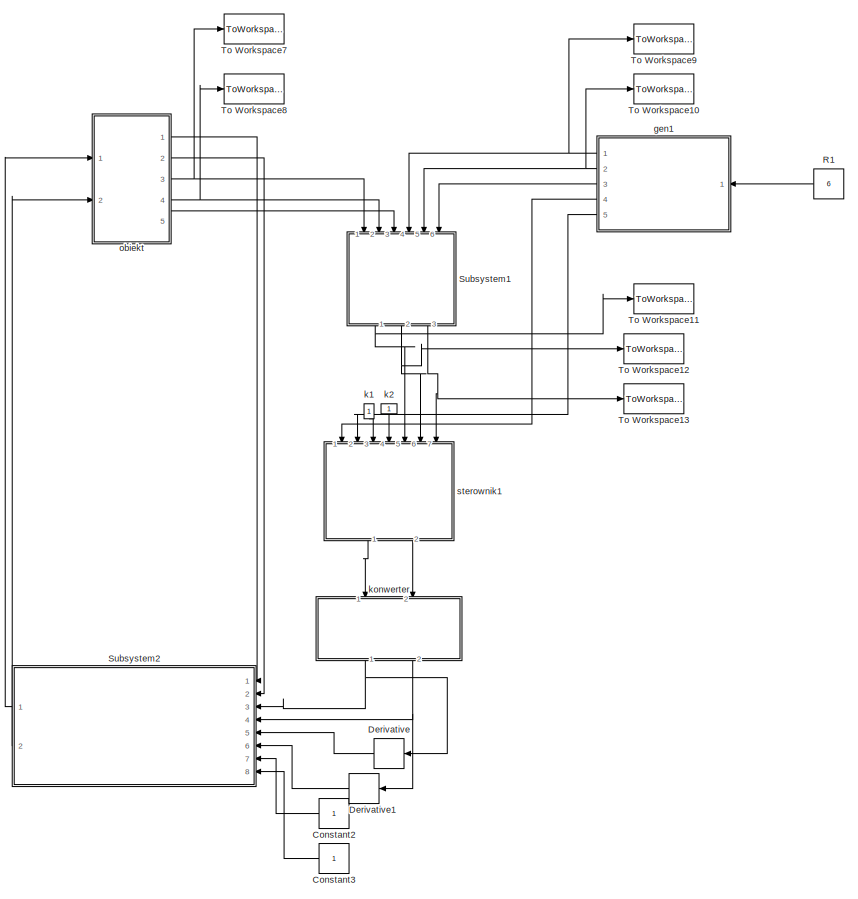
[diagram: root canvas - part 1/2, right side, full height]
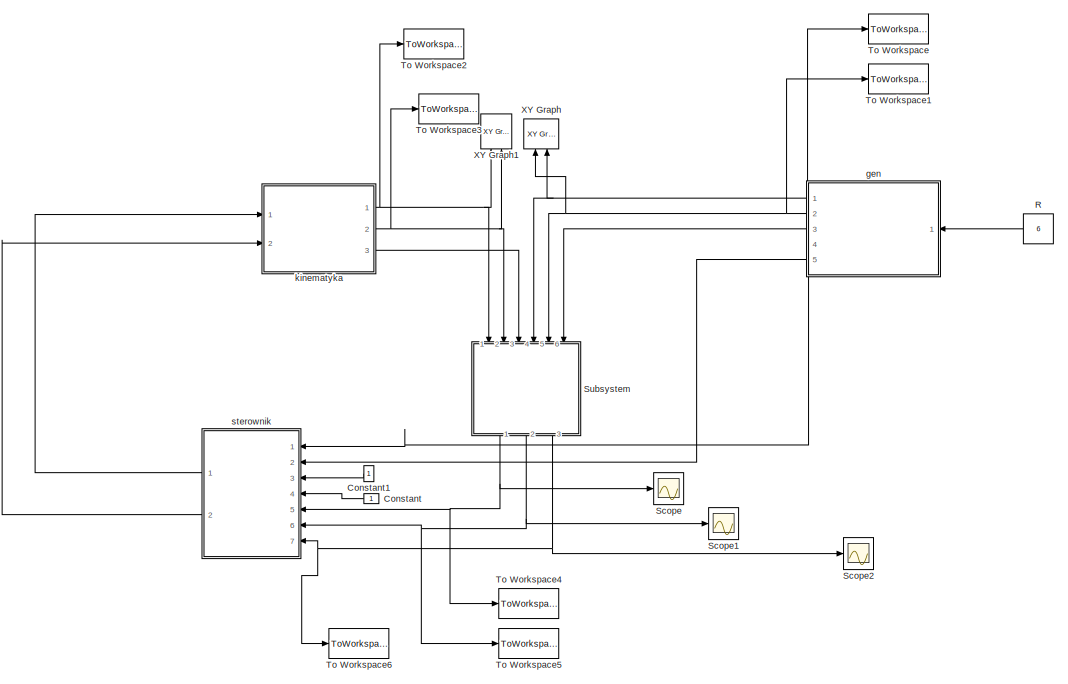
[diagram: root canvas - part 2/2, left side, full height]
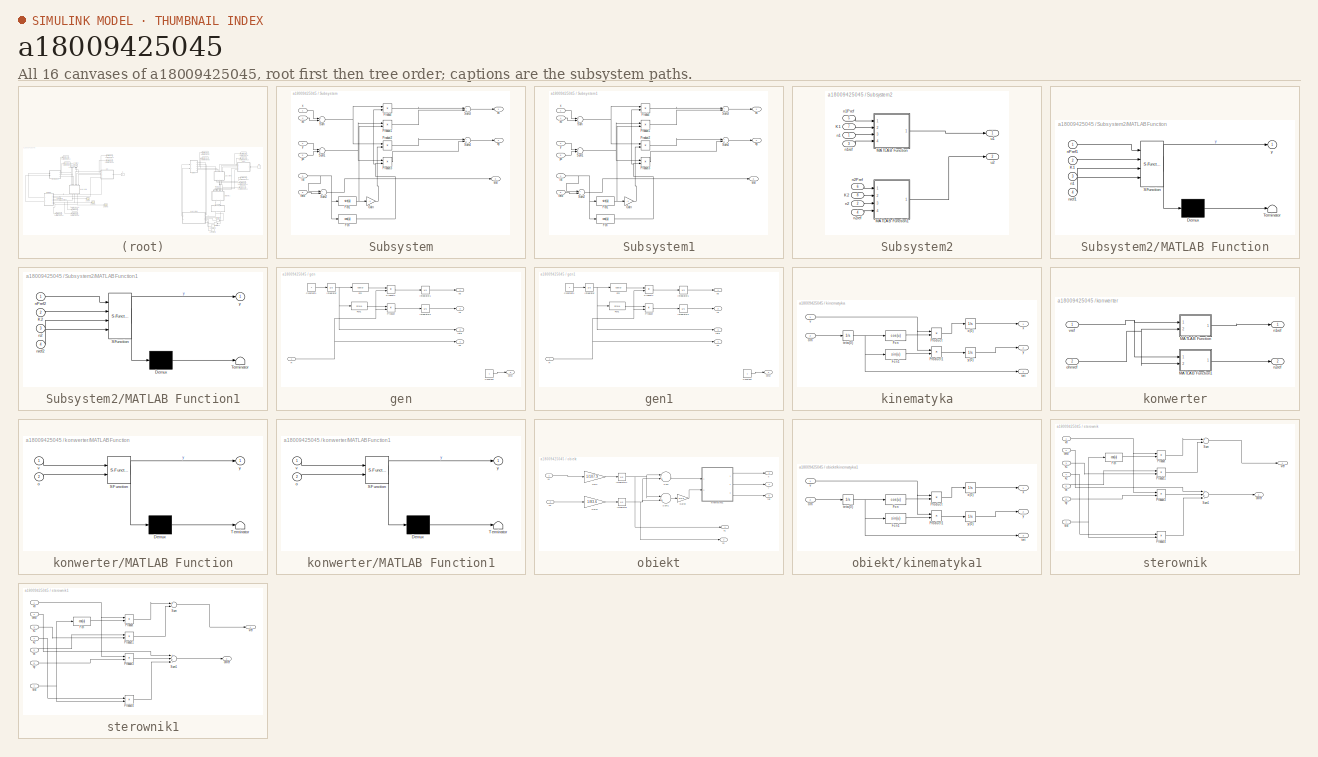
[diagram: thumbnail index - all 16 canvases of the model, root first then tree order]
MODEL slx_a18009425045
KIND model
CONFIG AbsTol = auto
CONFIG FixedStep = auto
CONFIG MaxStep = auto
CONFIG MinStep = auto
CONFIG RelTol = 1e-5
CONFIG SampleTimeConstraint = Unconstrained
CONFIG Solver = ode23
CONFIG SolverMode = Auto
CONFIG SolverName = ode23
CONFIG StartTime = 0.0
CONFIG StopTime = 10.0
BLOCK [Constant] Constant
BLOCK [Constant] Constant1
BLOCK [Constant] Constant2
BLOCK [Constant] Constant3
BLOCK [Derivative] Derivative
BLOCK [Derivative] Derivative1
BLOCK [Constant] R
  Value = 6
BLOCK [Constant] R1
  Value = 6
BLOCK [Scope] Scope
  Ports = [1]
  ScopeSpecificationString = Simulink.scopes.TimeScopeBlockCfg('CurrentConfiguration', extmgr.ConfigurationSet(extmgr.Configuration('Core','General UI',true),extmgr.Configuration('Core','Source UI',true),extmgr.Configuration('Sources','WiredSimulink',true),extmgr.Configuration('Visuals','Time Domain',true,'SerializedDisplays',{struct('MinYLimReal','-7.47551','MaxYLimReal','1.94172','YLabelReal','','MinYLimMag','0.00000','MaxY...<+1331ch>
BLOCK [Scope] Scope1
  Ports = [1]
  ScopeSpecificationString = Simulink.scopes.TimeScopeBlockCfg('CurrentConfiguration', extmgr.ConfigurationSet(extmgr.Configuration('Core','General UI',true),extmgr.Configuration('Core','Source UI',true),extmgr.Configuration('Sources','WiredSimulink',true,'DataLoggingVariableName','ScopeData1'),extmgr.Configuration('Visuals','Time Domain',true,'SerializedDisplays',{struct('MinYLimReal','-1.00000','MaxYLimReal','1.00000','YLab...<+1370ch>
BLOCK [Scope] Scope2
  Ports = [1]
  ScopeSpecificationString = Simulink.scopes.TimeScopeBlockCfg('CurrentConfiguration', extmgr.ConfigurationSet(extmgr.Configuration('Core','General UI',true),extmgr.Configuration('Core','Source UI',true),extmgr.Configuration('Sources','WiredSimulink',true,'DataLoggingVariableName','ScopeData2'),extmgr.Configuration('Visuals','Time Domain',true,'SerializedDisplays',{struct('MinYLimReal','-1.94569','MaxYLimReal','0.21619','YLab...<+1370ch>
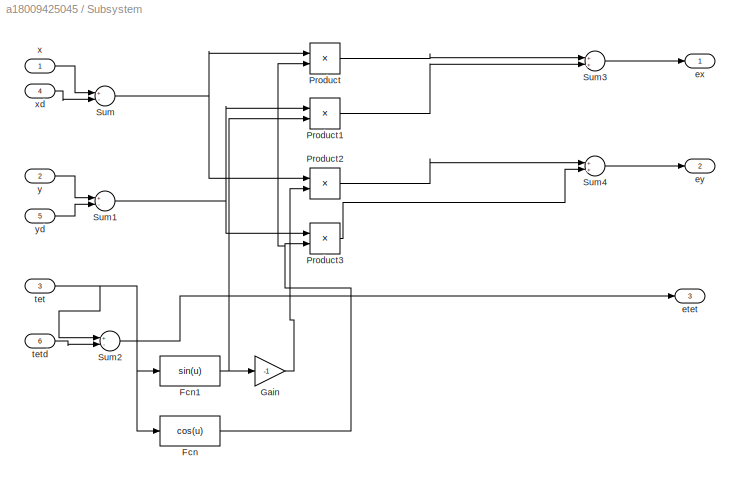
BLOCK [SubSystem] Subsystem
  Ports = [6, 3]
  RequestExecContextInheritance = off
  Variant = off
BLOCK [Fcn] Subsystem/Fcn
  Expr = cos(u)
BLOCK [Fcn] Subsystem/Fcn1
  Expr = sin(u)
BLOCK [Gain] Subsystem/Gain
  Gain = -1
  OutDataTypeStr = Inherit: Inherit via internal rule
  ParamDataTypeStr = Inherit: Inherit via internal rule
  SaturateOnIntegerOverflow = off
BLOCK [Product] Subsystem/Product
  InputSameDT = off
  OutDataTypeStr = Inherit: Inherit via internal rule
  Ports = [2, 1]
  RndMeth = Floor
  SaturateOnIntegerOverflow = off
BLOCK [Product] Subsystem/Product1
  InputSameDT = off
  OutDataTypeStr = Inherit: Inherit via internal rule
  Ports = [2, 1]
  RndMeth = Floor
  SaturateOnIntegerOverflow = off
BLOCK [Product] Subsystem/Product2
  InputSameDT = off
  OutDataTypeStr = Inherit: Inherit via internal rule
  Ports = [2, 1]
  RndMeth = Floor
  SaturateOnIntegerOverflow = off
BLOCK [Product] Subsystem/Product3
  InputSameDT = off
  OutDataTypeStr = Inherit: Inherit via internal rule
  Ports = [2, 1]
  RndMeth = Floor
  SaturateOnIntegerOverflow = off
BLOCK [Sum] Subsystem/Sum
  InputSameDT = off
  Inputs = +-
  OutDataTypeStr = Inherit: Inherit via internal rule
  Ports = [2, 1]
  SaturateOnIntegerOverflow = off
BLOCK [Sum] Subsystem/Sum1
  InputSameDT = off
  Inputs = +-
  OutDataTypeStr = Inherit: Inherit via internal rule
  Ports = [2, 1]
  SaturateOnIntegerOverflow = off
BLOCK [Sum] Subsystem/Sum2
  InputSameDT = off
  Inputs = +-
  OutDataTypeStr = Inherit: Inherit via internal rule
  Ports = [2, 1]
  SaturateOnIntegerOverflow = off
BLOCK [Sum] Subsystem/Sum3
  InputSameDT = off
  OutDataTypeStr = Inherit: Inherit via internal rule
  Ports = [2, 1]
  SaturateOnIntegerOverflow = off
BLOCK [Sum] Subsystem/Sum4
  InputSameDT = off
  OutDataTypeStr = Inherit: Inherit via internal rule
  Ports = [2, 1]
  SaturateOnIntegerOverflow = off
BLOCK [Outport] Subsystem/etet
  IconDisplay = Port number
  Port = 3
BLOCK [Outport] Subsystem/ex
  IconDisplay = Port number
BLOCK [Outport] Subsystem/ey
  IconDisplay = Port number
  Port = 2
BLOCK [Inport] Subsystem/tet
  IconDisplay = Port number
  Port = 3
BLOCK [Inport] Subsystem/tetd
  IconDisplay = Port number
  Port = 6
BLOCK [Inport] Subsystem/x
  IconDisplay = Port number
BLOCK [Inport] Subsystem/xd
  IconDisplay = Port number
  Port = 4
BLOCK [Inport] Subsystem/y
  IconDisplay = Port number
  Port = 2
BLOCK [Inport] Subsystem/yd
  IconDisplay = Port number
  Port = 5
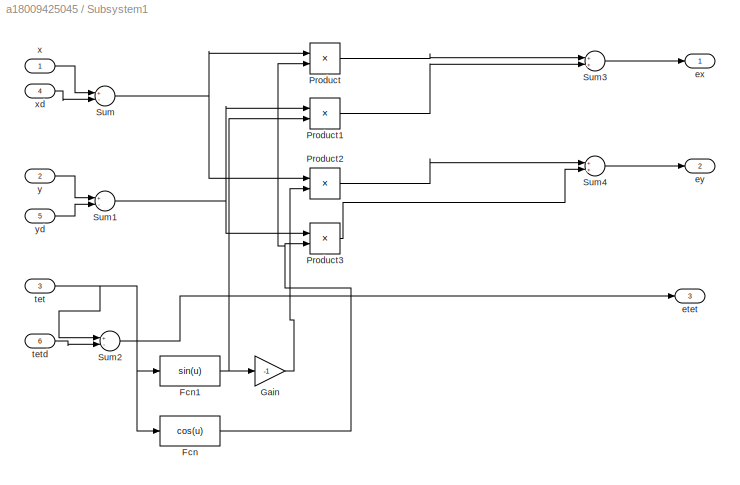
BLOCK [SubSystem] Subsystem1
  Ports = [6, 3]
  RequestExecContextInheritance = off
  Variant = off
BLOCK [Fcn] Subsystem1/Fcn
  Expr = cos(u)
BLOCK [Fcn] Subsystem1/Fcn1
  Expr = sin(u)
BLOCK [Gain] Subsystem1/Gain
  Gain = -1
  OutDataTypeStr = Inherit: Inherit via internal rule
  ParamDataTypeStr = Inherit: Inherit via internal rule
  SaturateOnIntegerOverflow = off
BLOCK [Product] Subsystem1/Product
  InputSameDT = off
  OutDataTypeStr = Inherit: Inherit via internal rule
  Ports = [2, 1]
  RndMeth = Floor
  SaturateOnIntegerOverflow = off
BLOCK [Product] Subsystem1/Product1
  InputSameDT = off
  OutDataTypeStr = Inherit: Inherit via internal rule
  Ports = [2, 1]
  RndMeth = Floor
  SaturateOnIntegerOverflow = off
BLOCK [Product] Subsystem1/Product2
  InputSameDT = off
  OutDataTypeStr = Inherit: Inherit via internal rule
  Ports = [2, 1]
  RndMeth = Floor
  SaturateOnIntegerOverflow = off
BLOCK [Product] Subsystem1/Product3
  InputSameDT = off
  OutDataTypeStr = Inherit: Inherit via internal rule
  Ports = [2, 1]
  RndMeth = Floor
  SaturateOnIntegerOverflow = off
BLOCK [Sum] Subsystem1/Sum
  InputSameDT = off
  Inputs = +-
  OutDataTypeStr = Inherit: Inherit via internal rule
  Ports = [2, 1]
  SaturateOnIntegerOverflow = off
BLOCK [Sum] Subsystem1/Sum1
  InputSameDT = off
  Inputs = +-
  OutDataTypeStr = Inherit: Inherit via internal rule
  Ports = [2, 1]
  SaturateOnIntegerOverflow = off
BLOCK [Sum] Subsystem1/Sum2
  InputSameDT = off
  Inputs = +-
  OutDataTypeStr = Inherit: Inherit via internal rule
  Ports = [2, 1]
  SaturateOnIntegerOverflow = off
BLOCK [Sum] Subsystem1/Sum3
  InputSameDT = off
  OutDataTypeStr = Inherit: Inherit via internal rule
  Ports = [2, 1]
  SaturateOnIntegerOverflow = off
BLOCK [Sum] Subsystem1/Sum4
  InputSameDT = off
  OutDataTypeStr = Inherit: Inherit via internal rule
  Ports = [2, 1]
  SaturateOnIntegerOverflow = off
BLOCK [Outport] Subsystem1/etet
  IconDisplay = Port number
  Port = 3
BLOCK [Outport] Subsystem1/ex
  IconDisplay = Port number
BLOCK [Outport] Subsystem1/ey
  IconDisplay = Port number
  Port = 2
BLOCK [Inport] Subsystem1/tet
  IconDisplay = Port number
  Port = 3
BLOCK [Inport] Subsystem1/tetd
  IconDisplay = Port number
  Port = 6
BLOCK [Inport] Subsystem1/x
  IconDisplay = Port number
BLOCK [Inport] Subsystem1/xd
  IconDisplay = Port number
  Port = 4
BLOCK [Inport] Subsystem1/y
  IconDisplay = Port number
  Port = 2
BLOCK [Inport] Subsystem1/yd
  IconDisplay = Port number
  Port = 5
BLOCK [SubSystem] Subsystem2
  Ports = [8, 2]
  RequestExecContextInheritance = off
  Variant = off
BLOCK [Inport] Subsystem2/K1
  IconDisplay = Port number
  Port = 7
BLOCK [Inport] Subsystem2/K2
  IconDisplay = Port number
  Port = 8
BLOCK [SubSystem] Subsystem2/MATLAB Function
  ErrorFcn = Stateflow.Translate.translate
  PermitHierarchicalResolution = ExplicitOnly
  Ports = [4, 1]
  RequestExecContextInheritance = off
  SFBlockType = MATLAB Function
  TreatAsAtomicUnit = on
  Variant = off
BLOCK [Demux] Subsystem2/MATLAB Function/ Demux 
  Outputs = 1
  Ports = [1, 1]
BLOCK [S-Function] Subsystem2/MATLAB Function/ SFunction 
  EnableBusSupport = on
  FunctionName = sf_sfun
  PortCounts = [4 2]
  Ports = [4, 2]
  SFunctionDeploymentMode = off
  Tag = Stateflow S-Function laby2 3
BLOCK [Terminator] Subsystem2/MATLAB Function/ Terminator 
BLOCK [Inport] Subsystem2/MATLAB Function/K1
  IconDisplay = Port number
  Port = 2
BLOCK [Inport] Subsystem2/MATLAB Function/n1
  IconDisplay = Port number
  Port = 3
BLOCK [Inport] Subsystem2/MATLAB Function/nPref1
  IconDisplay = Port number
BLOCK [Inport] Subsystem2/MATLAB Function/nref1
  IconDisplay = Port number
  Port = 4
BLOCK [Outport] Subsystem2/MATLAB Function/y
  IconDisplay = Port number
BLOCK [SubSystem] Subsystem2/MATLAB Function1
  ErrorFcn = Stateflow.Translate.translate
  PermitHierarchicalResolution = ExplicitOnly
  Ports = [4, 1]
  RequestExecContextInheritance = off
  SFBlockType = MATLAB Function
  TreatAsAtomicUnit = on
  Variant = off
BLOCK [Demux] Subsystem2/MATLAB Function1/ Demux 
  Outputs = 1
  Ports = [1, 1]
BLOCK [S-Function] Subsystem2/MATLAB Function1/ SFunction 
  EnableBusSupport = on
  FunctionName = sf_sfun
  PortCounts = [4 2]
  Ports = [4, 2]
  SFunctionDeploymentMode = off
  Tag = Stateflow S-Function laby2 4
BLOCK [Terminator] Subsystem2/MATLAB Function1/ Terminator 
BLOCK [Inport] Subsystem2/MATLAB Function1/K2
  IconDisplay = Port number
  Port = 2
BLOCK [Inport] Subsystem2/MATLAB Function1/n2
  IconDisplay = Port number
  Port = 3
BLOCK [Inport] Subsystem2/MATLAB Function1/nPref2
  IconDisplay = Port number
BLOCK [Inport] Subsystem2/MATLAB Function1/nref2
  IconDisplay = Port number
  Port = 4
BLOCK [Outport] Subsystem2/MATLAB Function1/y
  IconDisplay = Port number
BLOCK [Inport] Subsystem2/n1
  IconDisplay = Port number
BLOCK [Inport] Subsystem2/n1Pref
  IconDisplay = Port number
  Port = 5
BLOCK [Inport] Subsystem2/n1ref
  IconDisplay = Port number
  Port = 3
BLOCK [Inport] Subsystem2/n2
  IconDisplay = Port number
  Port = 2
BLOCK [Inport] Subsystem2/n2Pref
  IconDisplay = Port number
  Port = 6
BLOCK [Inport] Subsystem2/n2ref
  IconDisplay = Port number
  Port = 4
BLOCK [Outport] Subsystem2/u1
  IconDisplay = Port number
BLOCK [Outport] Subsystem2/u2
  IconDisplay = Port number
  Port = 2
BLOCK [ToWorkspace] To Workspace
  FixptAsFi = on
  MaxDataPoints = inf
  Ports = [1]
  SampleTime = -1
  Save2DSignal = 3-D array (concatenate along third dimension)
  VariableName = xd
BLOCK [ToWorkspace] To Workspace1
  FixptAsFi = on
  MaxDataPoints = inf
  Ports = [1]
  SampleTime = -1
  Save2DSignal = 3-D array (concatenate along third dimension)
  VariableName = yd
BLOCK [ToWorkspace] To Workspace10
  FixptAsFi = on
  MaxDataPoints = inf
  Ports = [1]
  SampleTime = -1
  Save2DSignal = 3-D array (concatenate along third dimension)
  VariableName = y2d
BLOCK [ToWorkspace] To Workspace11
  FixptAsFi = on
  MaxDataPoints = inf
  Ports = [1]
  SampleTime = -1
  Save2DSignal = 3-D array (concatenate along third dimension)
  VariableName = ex2
BLOCK [ToWorkspace] To Workspace12
  FixptAsFi = on
  MaxDataPoints = inf
  Ports = [1]
  SampleTime = -1
  Save2DSignal = 3-D array (concatenate along third dimension)
  VariableName = ey2
BLOCK [ToWorkspace] To Workspace13
  FixptAsFi = on
  MaxDataPoints = inf
  Ports = [1]
  SampleTime = -1
  Save2DSignal = 3-D array (concatenate along third dimension)
  VariableName = etet2
BLOCK [ToWorkspace] To Workspace2
  FixptAsFi = on
  MaxDataPoints = inf
  Ports = [1]
  SampleTime = -1
  Save2DSignal = 3-D array (concatenate along third dimension)
  VariableName = x
BLOCK [ToWorkspace] To Workspace3
  FixptAsFi = on
  MaxDataPoints = inf
  Ports = [1]
  SampleTime = -1
  Save2DSignal = 3-D array (concatenate along third dimension)
  VariableName = y
BLOCK [ToWorkspace] To Workspace4
  FixptAsFi = on
  MaxDataPoints = inf
  Ports = [1]
  SampleTime = -1
  Save2DSignal = 3-D array (concatenate along third dimension)
  VariableName = ex
BLOCK [ToWorkspace] To Workspace5
  FixptAsFi = on
  MaxDataPoints = inf
  Ports = [1]
  SampleTime = -1
  Save2DSignal = 3-D array (concatenate along third dimension)
  VariableName = ey
BLOCK [ToWorkspace] To Workspace6
  FixptAsFi = on
  MaxDataPoints = inf
  Ports = [1]
  SampleTime = -1
  Save2DSignal = 3-D array (concatenate along third dimension)
  VariableName = etet
BLOCK [ToWorkspace] To Workspace7
  FixptAsFi = on
  MaxDataPoints = inf
  Ports = [1]
  SampleTime = -1
  Save2DSignal = 3-D array (concatenate along third dimension)
  VariableName = x2
BLOCK [ToWorkspace] To Workspace8
  FixptAsFi = on
  MaxDataPoints = inf
  Ports = [1]
  SampleTime = -1
  Save2DSignal = 3-D array (concatenate along third dimension)
  VariableName = y2
BLOCK [ToWorkspace] To Workspace9
  FixptAsFi = on
  MaxDataPoints = inf
  Ports = [1]
  SampleTime = -1
  Save2DSignal = 3-D array (concatenate along third dimension)
  VariableName = x2d
BLOCK [Reference] XY Graph  REF=simulink/Sinks/XY Graph
  Ports = [2]
  SourceBlock = simulink/Sinks/XY Graph
  SourceType = XY scope.
BLOCK [Reference] XY Graph1  REF=simulink/Sinks/XY Graph
  Ports = [2]
  SourceBlock = simulink/Sinks/XY Graph
  SourceType = XY scope.
BLOCK [SubSystem] gen
  Ports = [1, 5]
  RequestExecContextInheritance = off
  Variant = off
BLOCK [Constant] gen/Constant
BLOCK [Constant] gen/Constant1
BLOCK [Fcn] gen/Fcn
  Expr = cos(u)
BLOCK [Fcn] gen/Fcn1
  Expr = sin(u)
BLOCK [Integrator] gen/Integrator
  Ports = [1, 1]
BLOCK [Integrator] gen/Integrator1
  Ports = [1, 1]
BLOCK [Integrator] gen/Integrator2
  InitialCondition = -6
  Ports = [1, 1]
BLOCK [Product] gen/Product
  InputSameDT = off
  OutDataTypeStr = Inherit: Inherit via internal rule
  Ports = [2, 1]
  RndMeth = Floor
  SaturateOnIntegerOverflow = off
BLOCK [Product] gen/Product1
  InputSameDT = off
  OutDataTypeStr = Inherit: Inherit via internal rule
  Ports = [2, 1]
  RndMeth = Floor
  SaturateOnIntegerOverflow = off
BLOCK [Inport] gen/R
  IconDisplay = Port number
BLOCK [Outport] gen/omd
  IconDisplay = Port number
  Port = 5
BLOCK [Outport] gen/tetd
  IconDisplay = Port number
  Port = 3
BLOCK [Outport] gen/vd
  IconDisplay = Port number
  Port = 4
BLOCK [Outport] gen/xd
  IconDisplay = Port number
BLOCK [Outport] gen/yd
  IconDisplay = Port number
  Port = 2
BLOCK [SubSystem] gen1
  Ports = [1, 5]
  RequestExecContextInheritance = off
  Variant = off
BLOCK [Constant] gen1/Constant
BLOCK [Constant] gen1/Constant1
BLOCK [Fcn] gen1/Fcn
  Expr = cos(u)
BLOCK [Fcn] gen1/Fcn1
  Expr = sin(u)
BLOCK [Integrator] gen1/Integrator
  Ports = [1, 1]
BLOCK [Integrator] gen1/Integrator1
  Ports = [1, 1]
BLOCK [Integrator] gen1/Integrator2
  InitialCondition = -6
  Ports = [1, 1]
BLOCK [Product] gen1/Product
  InputSameDT = off
  OutDataTypeStr = Inherit: Inherit via internal rule
  Ports = [2, 1]
  RndMeth = Floor
  SaturateOnIntegerOverflow = off
BLOCK [Product] gen1/Product1
  InputSameDT = off
  OutDataTypeStr = Inherit: Inherit via internal rule
  Ports = [2, 1]
  RndMeth = Floor
  SaturateOnIntegerOverflow = off
BLOCK [Inport] gen1/R
  IconDisplay = Port number
BLOCK [Outport] gen1/omd
  IconDisplay = Port number
  Port = 5
BLOCK [Outport] gen1/tetd
  IconDisplay = Port number
  Port = 3
BLOCK [Outport] gen1/vd
  IconDisplay = Port number
  Port = 4
BLOCK [Outport] gen1/xd
  IconDisplay = Port number
BLOCK [Outport] gen1/yd
  IconDisplay = Port number
  Port = 2
BLOCK [Constant] k1
BLOCK [Constant] k2
BLOCK [SubSystem] kinematyka
  Ports = [2, 3]
  RequestExecContextInheritance = off
  Variant = off
BLOCK [Fcn] kinematyka/Fcn
  Expr = cos(u)
BLOCK [Fcn] kinematyka/Fcn1
  Expr = sin(u)
BLOCK [Product] kinematyka/Product
  InputSameDT = off
  OutDataTypeStr = Inherit: Inherit via internal rule
  Ports = [2, 1]
  RndMeth = Floor
  SaturateOnIntegerOverflow = off
BLOCK [Product] kinematyka/Product1
  InputSameDT = off
  OutDataTypeStr = Inherit: Inherit via internal rule
  Ports = [2, 1]
  RndMeth = Floor
  SaturateOnIntegerOverflow = off
BLOCK [Inport] kinematyka/om
  IconDisplay = Port number
  Port = 2
BLOCK [Outport] kinematyka/tet
  IconDisplay = Port number
  Port = 3
BLOCK [Integrator] kinematyka/teta(0)
  Ports = [1, 1]
BLOCK [Inport] kinematyka/v
  IconDisplay = Port number
BLOCK [Outport] kinematyka/x
  IconDisplay = Port number
BLOCK [Integrator] kinematyka/x(0)
  InitialCondition = 1
  Ports = [1, 1]
BLOCK [Outport] kinematyka/y
  IconDisplay = Port number
  Port = 2
BLOCK [Integrator] kinematyka/y(0)
  InitialCondition = 1
  Ports = [1, 1]
BLOCK [SubSystem] konwerter
  Ports = [2, 2]
  RequestExecContextInheritance = off
  Variant = off
BLOCK [SubSystem] konwerter/MATLAB Function
  ErrorFcn = Stateflow.Translate.translate
  PermitHierarchicalResolution = ExplicitOnly
  Ports = [2, 1]
  RequestExecContextInheritance = off
  SFBlockType = MATLAB Function
  TreatAsAtomicUnit = on
  Variant = off
BLOCK [Demux] konwerter/MATLAB Function/ Demux 
  Outputs = 1
  Ports = [1, 1]
BLOCK [S-Function] konwerter/MATLAB Function/ SFunction 
  EnableBusSupport = on
  FunctionName = sf_sfun
  PortCounts = [2 2]
  Ports = [2, 2]
  SFunctionDeploymentMode = off
  Tag = Stateflow S-Function laby2 2
BLOCK [Terminator] konwerter/MATLAB Function/ Terminator 
BLOCK [Inport] konwerter/MATLAB Function/o
  IconDisplay = Port number
  Port = 2
BLOCK [Inport] konwerter/MATLAB Function/v
  IconDisplay = Port number
BLOCK [Outport] konwerter/MATLAB Function/y
  IconDisplay = Port number
BLOCK [SubSystem] konwerter/MATLAB Function1
  ErrorFcn = Stateflow.Translate.translate
  PermitHierarchicalResolution = ExplicitOnly
  Ports = [2, 1]
  RequestExecContextInheritance = off
  SFBlockType = MATLAB Function
  TreatAsAtomicUnit = on
  Variant = off
BLOCK [Demux] konwerter/MATLAB Function1/ Demux 
  Outputs = 1
  Ports = [1, 1]
BLOCK [S-Function] konwerter/MATLAB Function1/ SFunction 
  EnableBusSupport = on
  FunctionName = sf_sfun
  PortCounts = [2 2]
  Ports = [2, 2]
  SFunctionDeploymentMode = off
  Tag = Stateflow S-Function laby2 1
BLOCK [Terminator] konwerter/MATLAB Function1/ Terminator 
BLOCK [Inport] konwerter/MATLAB Function1/o
  IconDisplay = Port number
  Port = 2
BLOCK [Inport] konwerter/MATLAB Function1/v
  IconDisplay = Port number
BLOCK [Outport] konwerter/MATLAB Function1/y
  IconDisplay = Port number
BLOCK [Outport] konwerter/n1ref
  IconDisplay = Port number
BLOCK [Outport] konwerter/n2ref
  IconDisplay = Port number
  Port = 2
BLOCK [Inport] konwerter/ohmref
  IconDisplay = Port number
  Port = 2
BLOCK [Inport] konwerter/vref
  IconDisplay = Port number
BLOCK [SubSystem] obiekt
  Ports = [2, 5]
  RequestExecContextInheritance = off
  Variant = off
BLOCK [Gain] obiekt/Gain
  Gain = 1/107.9
  OutDataTypeStr = Inherit: Inherit via internal rule
  ParamDataTypeStr = Inherit: Inherit via internal rule
  SaturateOnIntegerOverflow = off
BLOCK [Gain] obiekt/Gain1
  Gain = 1/83.6
  OutDataTypeStr = Inherit: Inherit via internal rule
  ParamDataTypeStr = Inherit: Inherit via internal rule
  SaturateOnIntegerOverflow = off
BLOCK [Gain] obiekt/Gain2
  Gain = 1/0.3
  OutDataTypeStr = Inherit: Inherit via internal rule
  ParamDataTypeStr = Inherit: Inherit via internal rule
  SaturateOnIntegerOverflow = off
BLOCK [Integrator] obiekt/Integrator
  Ports = [1, 1]
BLOCK [Integrator] obiekt/Integrator1
  Ports = [1, 1]
BLOCK [Sum] obiekt/Sum
  InputSameDT = off
  Inputs = |++
  OutDataTypeStr = Inherit: Inherit via internal rule
  Ports = [2, 1]
  SaturateOnIntegerOverflow = off
BLOCK [Sum] obiekt/Sum1
  InputSameDT = off
  Inputs = |+-
  OutDataTypeStr = Inherit: Inherit via internal rule
  Ports = [2, 1]
  SaturateOnIntegerOverflow = off
BLOCK [SubSystem] obiekt/kinematyka1
  Ports = [2, 3]
  RequestExecContextInheritance = off
  Variant = off
BLOCK [Fcn] obiekt/kinematyka1/Fcn
  Expr = cos(u)
BLOCK [Fcn] obiekt/kinematyka1/Fcn1
  Expr = sin(u)
BLOCK [Product] obiekt/kinematyka1/Product
  InputSameDT = off
  OutDataTypeStr = Inherit: Inherit via internal rule
  Ports = [2, 1]
  RndMeth = Floor
  SaturateOnIntegerOverflow = off
BLOCK [Product] obiekt/kinematyka1/Product1
  InputSameDT = off
  OutDataTypeStr = Inherit: Inherit via internal rule
  Ports = [2, 1]
  RndMeth = Floor
  SaturateOnIntegerOverflow = off
BLOCK [Inport] obiekt/kinematyka1/om
  IconDisplay = Port number
  Port = 2
BLOCK [Outport] obiekt/kinematyka1/tet
  IconDisplay = Port number
  Port = 3
BLOCK [Integrator] obiekt/kinematyka1/teta(0)
  Ports = [1, 1]
BLOCK [Inport] obiekt/kinematyka1/v
  IconDisplay = Port number
BLOCK [Outport] obiekt/kinematyka1/x
  IconDisplay = Port number
BLOCK [Integrator] obiekt/kinematyka1/x(0)
  InitialCondition = 1
  Ports = [1, 1]
BLOCK [Outport] obiekt/kinematyka1/y
  IconDisplay = Port number
  Port = 2
BLOCK [Integrator] obiekt/kinematyka1/y(0)
  InitialCondition = 1
  Ports = [1, 1]
BLOCK [Outport] obiekt/n1
  IconDisplay = Port number
BLOCK [Outport] obiekt/n2
  IconDisplay = Port number
  Port = 2
BLOCK [Outport] obiekt/tet
  IconDisplay = Port number
  Port = 5
BLOCK [Inport] obiekt/u1
  IconDisplay = Port number
BLOCK [Inport] obiekt/u2
  IconDisplay = Port number
  Port = 2
BLOCK [Outport] obiekt/x
  IconDisplay = Port number
  Port = 3
BLOCK [Outport] obiekt/y
  IconDisplay = Port number
  Port = 4
BLOCK [SubSystem] sterownik
  Ports = [7, 2]
  RequestExecContextInheritance = off
  Variant = off
BLOCK [Fcn] sterownik/Fcn
  Expr = cos(u)
BLOCK [Product] sterownik/Product
  InputSameDT = off
  OutDataTypeStr = Inherit: Inherit via internal rule
  Ports = [2, 1]
  RndMeth = Floor
  SaturateOnIntegerOverflow = off
BLOCK [Product] sterownik/Product1
  InputSameDT = off
  OutDataTypeStr = Inherit: Inherit via internal rule
  Ports = [2, 1]
  RndMeth = Floor
  SaturateOnIntegerOverflow = off
BLOCK [Product] sterownik/Product3
  InputSameDT = off
  OutDataTypeStr = Inherit: Inherit via internal rule
  Ports = [2, 1]
  RndMeth = Floor
  SaturateOnIntegerOverflow = off
BLOCK [Product] sterownik/Product4
  InputSameDT = off
  OutDataTypeStr = Inherit: Inherit via internal rule
  Ports = [2, 1]
  RndMeth = Floor
  SaturateOnIntegerOverflow = off
BLOCK [Sum] sterownik/Sum
  InputSameDT = off
  Inputs = +-
  OutDataTypeStr = Inherit: Inherit via internal rule
  Ports = [2, 1]
  SaturateOnIntegerOverflow = off
BLOCK [Sum] sterownik/Sum1
  InputSameDT = off
  Inputs = +--
  OutDataTypeStr = Inherit: Inherit via internal rule
  Ports = [3, 1]
  SaturateOnIntegerOverflow = off
BLOCK [Inport] sterownik/etet
  IconDisplay = Port number
  Port = 7
BLOCK [Inport] sterownik/ex
  IconDisplay = Port number
  Port = 5
BLOCK [Inport] sterownik/ey
  IconDisplay = Port number
  Port = 6
BLOCK [Inport] sterownik/k1
  IconDisplay = Port number
  Port = 3
BLOCK [Inport] sterownik/k2
  IconDisplay = Port number
  Port = 4
BLOCK [Inport] sterownik/omd
  IconDisplay = Port number
  Port = 2
BLOCK [Outport] sterownik/omref
  IconDisplay = Port number
  Port = 2
BLOCK [Inport] sterownik/vd
  IconDisplay = Port number
BLOCK [Outport] sterownik/vref
  IconDisplay = Port number
BLOCK [SubSystem] sterownik1
  Ports = [7, 2]
  RequestExecContextInheritance = off
  Variant = off
BLOCK [Fcn] sterownik1/Fcn
  Expr = cos(u)
BLOCK [Product] sterownik1/Product
  InputSameDT = off
  OutDataTypeStr = Inherit: Inherit via internal rule
  Ports = [2, 1]
  RndMeth = Floor
  SaturateOnIntegerOverflow = off
BLOCK [Product] sterownik1/Product1
  InputSameDT = off
  OutDataTypeStr = Inherit: Inherit via internal rule
  Ports = [2, 1]
  RndMeth = Floor
  SaturateOnIntegerOverflow = off
BLOCK [Product] sterownik1/Product3
  InputSameDT = off
  OutDataTypeStr = Inherit: Inherit via internal rule
  Ports = [2, 1]
  RndMeth = Floor
  SaturateOnIntegerOverflow = off
BLOCK [Product] sterownik1/Product4
  InputSameDT = off
  OutDataTypeStr = Inherit: Inherit via internal rule
  Ports = [2, 1]
  RndMeth = Floor
  SaturateOnIntegerOverflow = off
BLOCK [Sum] sterownik1/Sum
  InputSameDT = off
  Inputs = +-
  OutDataTypeStr = Inherit: Inherit via internal rule
  Ports = [2, 1]
  SaturateOnIntegerOverflow = off
BLOCK [Sum] sterownik1/Sum1
  InputSameDT = off
  Inputs = +--
  OutDataTypeStr = Inherit: Inherit via internal rule
  Ports = [3, 1]
  SaturateOnIntegerOverflow = off
BLOCK [Inport] sterownik1/etet
  IconDisplay = Port number
  Port = 7
BLOCK [Inport] sterownik1/ex
  IconDisplay = Port number
  Port = 5
BLOCK [Inport] sterownik1/ey
  IconDisplay = Port number
  Port = 6
BLOCK [Inport] sterownik1/k1
  IconDisplay = Port number
  Port = 3
BLOCK [Inport] sterownik1/k2
  IconDisplay = Port number
  Port = 4
BLOCK [Inport] sterownik1/omd
  IconDisplay = Port number
  Port = 2
BLOCK [Outport] sterownik1/omref
  IconDisplay = Port number
  Port = 2
BLOCK [Inport] sterownik1/vd
  IconDisplay = Port number
BLOCK [Outport] sterownik1/vref
  IconDisplay = Port number
LINE Constant1:1 -> sterownik:3
LINE Constant2:1 -> Subsystem2:7
LINE Constant3:1 -> Subsystem2:8
LINE Constant:1 -> sterownik:4
LINE Derivative1:1 -> Subsystem2:6
LINE Derivative:1 -> Subsystem2:5
LINE R1:1 -> gen1:1
LINE R:1 -> gen:1
NET Subsystem/Fcn1:1 -> Subsystem/Gain:1, Subsystem/Product1:2
NET Subsystem/Fcn:1 -> Subsystem/Product3:2, Subsystem/Product:2
LINE Subsystem/Gain:1 -> Subsystem/Product2:2
LINE Subsystem/Product1:1 -> Subsystem/Sum3:2
LINE Subsystem/Product2:1 -> Subsystem/Sum4:1
LINE Subsystem/Product3:1 -> Subsystem/Sum4:2
LINE Subsystem/Product:1 -> Subsystem/Sum3:1
NET Subsystem/Sum1:1 -> Subsystem/Product1:1, Subsystem/Product3:1
LINE Subsystem/Sum2:1 -> Subsystem/etet:1
LINE Subsystem/Sum3:1 -> Subsystem/ex:1
LINE Subsystem/Sum4:1 -> Subsystem/ey:1
NET Subsystem/Sum:1 -> Subsystem/Product2:1, Subsystem/Product:1
NET Subsystem/tet:1 -> Subsystem/Fcn1:1, Subsystem/Fcn:1, Subsystem/Sum2:1
LINE Subsystem/tetd:1 -> Subsystem/Sum2:2
LINE Subsystem/x:1 -> Subsystem/Sum:1
LINE Subsystem/xd:1 -> Subsystem/Sum:2
LINE Subsystem/y:1 -> Subsystem/Sum1:1
LINE Subsystem/yd:1 -> Subsystem/Sum1:2
NET Subsystem1/Fcn1:1 -> Subsystem1/Gain:1, Subsystem1/Product1:2
NET Subsystem1/Fcn:1 -> Subsystem1/Product3:2, Subsystem1/Product:2
LINE Subsystem1/Gain:1 -> Subsystem1/Product2:2
LINE Subsystem1/Product1:1 -> Subsystem1/Sum3:2
LINE Subsystem1/Product2:1 -> Subsystem1/Sum4:1
LINE Subsystem1/Product3:1 -> Subsystem1/Sum4:2
LINE Subsystem1/Product:1 -> Subsystem1/Sum3:1
NET Subsystem1/Sum1:1 -> Subsystem1/Product1:1, Subsystem1/Product3:1
LINE Subsystem1/Sum2:1 -> Subsystem1/etet:1
LINE Subsystem1/Sum3:1 -> Subsystem1/ex:1
LINE Subsystem1/Sum4:1 -> Subsystem1/ey:1
NET Subsystem1/Sum:1 -> Subsystem1/Product2:1, Subsystem1/Product:1
NET Subsystem1/tet:1 -> Subsystem1/Fcn1:1, Subsystem1/Fcn:1, Subsystem1/Sum2:1
LINE Subsystem1/tetd:1 -> Subsystem1/Sum2:2
LINE Subsystem1/x:1 -> Subsystem1/Sum:1
LINE Subsystem1/xd:1 -> Subsystem1/Sum:2
LINE Subsystem1/y:1 -> Subsystem1/Sum1:1
LINE Subsystem1/yd:1 -> Subsystem1/Sum1:2
NET Subsystem1:1 -> To Workspace11:1, sterownik1:5
NET Subsystem1:2 -> To Workspace12:1, sterownik1:6
NET Subsystem1:3 -> To Workspace13:1, sterownik1:7
LINE Subsystem2/K1:1 -> Subsystem2/MATLAB Function:2
LINE Subsystem2/K2:1 -> Subsystem2/MATLAB Function1:2
LINE Subsystem2/MATLAB Function1:1 -> Subsystem2/u2:1
LINE Subsystem2/MATLAB Function:1 -> Subsystem2/u1:1
LINE Subsystem2/n1:1 -> Subsystem2/MATLAB Function:3
LINE Subsystem2/n1Pref:1 -> Subsystem2/MATLAB Function:1
LINE Subsystem2/n1ref:1 -> Subsystem2/MATLAB Function:4
LINE Subsystem2/n2:1 -> Subsystem2/MATLAB Function1:3
LINE Subsystem2/n2Pref:1 -> Subsystem2/MATLAB Function1:1
LINE Subsystem2/n2ref:1 -> Subsystem2/MATLAB Function1:4
LINE Subsystem2:1 -> obiekt:1
LINE Subsystem2:2 -> obiekt:2
NET Subsystem:1 -> Scope:1, To Workspace4:1, sterownik:5
NET Subsystem:2 -> Scope1:1, To Workspace5:1, sterownik:6
NET Subsystem:3 -> Scope2:1, To Workspace6:1, sterownik:7
LINE gen/Constant1:1 -> gen/Integrator:1
LINE gen/Constant:1 -> gen/omd:1
LINE gen/Fcn1:1 -> gen/Product:1
LINE gen/Fcn:1 -> gen/Product1:1
LINE gen/Integrator1:1 -> gen/xd:1
LINE gen/Integrator2:1 -> gen/yd:1
NET gen/Integrator:1 -> gen/Fcn1:1, gen/Fcn:1, gen/tetd:1
LINE gen/Product1:1 -> gen/Integrator1:1
LINE gen/Product:1 -> gen/Integrator2:1
NET gen/R:1 -> gen/Product1:2, gen/Product:2, gen/vd:1
LINE gen1/Constant1:1 -> gen1/Integrator:1
LINE gen1/Constant:1 -> gen1/omd:1
LINE gen1/Fcn1:1 -> gen1/Product:1
LINE gen1/Fcn:1 -> gen1/Product1:1
LINE gen1/Integrator1:1 -> gen1/xd:1
LINE gen1/Integrator2:1 -> gen1/yd:1
NET gen1/Integrator:1 -> gen1/Fcn1:1, gen1/Fcn:1, gen1/tetd:1
LINE gen1/Product1:1 -> gen1/Integrator1:1
LINE gen1/Product:1 -> gen1/Integrator2:1
NET gen1/R:1 -> gen1/Product1:2, gen1/Product:2, gen1/vd:1
NET gen1:1 -> Subsystem1:4, To Workspace9:1
NET gen1:2 -> Subsystem1:5, To Workspace10:1
LINE gen1:3 -> Subsystem1:6
LINE gen1:4 -> sterownik1:1
LINE gen1:5 -> sterownik1:2
NET gen:1 -> Subsystem:4, To Workspace:1, XY Graph:2
NET gen:2 -> Subsystem:5, To Workspace1:1, XY Graph:1
LINE gen:3 -> Subsystem:6
LINE gen:4 -> sterownik:1
LINE gen:5 -> sterownik:2
LINE k1:1 -> sterownik1:3
LINE k2:1 -> sterownik1:4
LINE kinematyka/Fcn1:1 -> kinematyka/Product1:2
LINE kinematyka/Fcn:1 -> kinematyka/Product:2
LINE kinematyka/Product1:1 -> kinematyka/y(0):1
LINE kinematyka/Product:1 -> kinematyka/x(0):1
LINE kinematyka/om:1 -> kinematyka/teta(0):1
NET kinematyka/teta(0):1 -> kinematyka/Fcn1:1, kinematyka/Fcn:1, kinematyka/tet:1
NET kinematyka/v:1 -> kinematyka/Product1:1, kinematyka/Product:1
LINE kinematyka/x(0):1 -> kinematyka/x:1
LINE kinematyka/y(0):1 -> kinematyka/y:1
NET kinematyka:1 -> Subsystem:1, To Workspace2:1, XY Graph1:1
NET kinematyka:2 -> Subsystem:2, To Workspace3:1, XY Graph1:2
LINE kinematyka:3 -> Subsystem:3
LINE konwerter/MATLAB Function1:1 -> konwerter/n2ref:1
LINE konwerter/MATLAB Function:1 -> konwerter/n1ref:1
NET konwerter/ohmref:1 -> konwerter/MATLAB Function1:2, konwerter/MATLAB Function:2
NET konwerter/vref:1 -> konwerter/MATLAB Function1:1, konwerter/MATLAB Function:1
NET konwerter:1 -> Derivative:1, Subsystem2:3
NET konwerter:2 -> Derivative1:1, Subsystem2:4
LINE obiekt/Gain1:1 -> obiekt/Integrator:1
LINE obiekt/Gain2:1 -> obiekt/kinematyka1:2
LINE obiekt/Gain:1 -> obiekt/Integrator1:1
NET obiekt/Integrator1:1 -> obiekt/Sum1:1, obiekt/Sum:1, obiekt/n1:1
NET obiekt/Integrator:1 -> obiekt/Sum1:2, obiekt/Sum:2, obiekt/n2:1
LINE obiekt/Sum1:1 -> obiekt/Gain2:1
LINE obiekt/Sum:1 -> obiekt/kinematyka1:1
LINE obiekt/kinematyka1/Fcn1:1 -> obiekt/kinematyka1/Product1:2
LINE obiekt/kinematyka1/Fcn:1 -> obiekt/kinematyka1/Product:2
LINE obiekt/kinematyka1/Product1:1 -> obiekt/kinematyka1/y(0):1
LINE obiekt/kinematyka1/Product:1 -> obiekt/kinematyka1/x(0):1
LINE obiekt/kinematyka1/om:1 -> obiekt/kinematyka1/teta(0):1
NET obiekt/kinematyka1/teta(0):1 -> obiekt/kinematyka1/Fcn1:1, obiekt/kinematyka1/Fcn:1, obiekt/kinematyka1/tet:1
NET obiekt/kinematyka1/v:1 -> obiekt/kinematyka1/Product1:1, obiekt/kinematyka1/Product:1
LINE obiekt/kinematyka1/x(0):1 -> obiekt/kinematyka1/x:1
LINE obiekt/kinematyka1/y(0):1 -> obiekt/kinematyka1/y:1
LINE obiekt/kinematyka1:1 -> obiekt/x:1
LINE obiekt/kinematyka1:2 -> obiekt/y:1
LINE obiekt/kinematyka1:3 -> obiekt/tet:1
LINE obiekt/u1:1 -> obiekt/Gain:1
LINE obiekt/u2:1 -> obiekt/Gain1:1
LINE obiekt:1 -> Subsystem2:1
LINE obiekt:2 -> Subsystem2:2
NET obiekt:3 -> Subsystem1:1, To Workspace7:1
NET obiekt:4 -> Subsystem1:2, To Workspace8:1
LINE obiekt:5 -> Subsystem1:3
LINE sterownik/Fcn:1 -> sterownik/Product:2
LINE sterownik/Product1:1 -> sterownik/Sum:2
LINE sterownik/Product3:1 -> sterownik/Sum1:2
LINE sterownik/Product4:1 -> sterownik/Sum1:3
LINE sterownik/Product:1 -> sterownik/Sum:1
LINE sterownik/Sum1:1 -> sterownik/omref:1
LINE sterownik/Sum:1 -> sterownik/vref:1
NET sterownik/etet:1 -> sterownik/Fcn:1, sterownik/Product4:2
LINE sterownik/ex:1 -> sterownik/Product1:1
LINE sterownik/ey:1 -> sterownik/Product3:2
LINE sterownik/k1:1 -> sterownik/Product1:2
LINE sterownik/k2:1 -> sterownik/Product4:1
LINE sterownik/omd:1 -> sterownik/Sum1:1
NET sterownik/vd:1 -> sterownik/Product3:1, sterownik/Product:1
LINE sterownik1/Fcn:1 -> sterownik1/Product:2
LINE sterownik1/Product1:1 -> sterownik1/Sum:2
LINE sterownik1/Product3:1 -> sterownik1/Sum1:2
LINE sterownik1/Product4:1 -> sterownik1/Sum1:3
LINE sterownik1/Product:1 -> sterownik1/Sum:1
LINE sterownik1/Sum1:1 -> sterownik1/omref:1
LINE sterownik1/Sum:1 -> sterownik1/vref:1
NET sterownik1/etet:1 -> sterownik1/Fcn:1, sterownik1/Product4:2
LINE sterownik1/ex:1 -> sterownik1/Product1:1
LINE sterownik1/ey:1 -> sterownik1/Product3:2
LINE sterownik1/k1:1 -> sterownik1/Product1:2
LINE sterownik1/k2:1 -> sterownik1/Product4:1
LINE sterownik1/omd:1 -> sterownik1/Sum1:1
NET sterownik1/vd:1 -> sterownik1/Product3:1, sterownik1/Product:1
LINE sterownik1:1 -> konwerter:1
LINE sterownik1:2 -> konwerter:2
LINE sterownik:1 -> kinematyka:1
LINE sterownik:2 -> kinematyka:2
note: NET lines group one-source signal fan-out (src -> all destinations, sorted); 1:1 wires keep LINE
CHART konwerter/MATLAB Function1 states=1 transitions=1
  STATE_LABEL 'eML_blk_kernel()'
  STATE_LABEL 'SCRIPT:\nfunction y = fcn(v, o)\n%#codegen\n\ny = 0.5*(v-0.3*o);'
CHART konwerter/MATLAB Function states=1 transitions=1
  STATE_LABEL 'eML_blk_kernel()'
  STATE_LABEL 'SCRIPT:\nfunction y = fcn(v, o)\n%#codegen\n\ny = 0.5*(v+0.3*o);'
CHART Subsystem2/MATLAB Function states=1 transitions=1
  STATE_LABEL 'eML_blk_kernel()'
  STATE_LABEL 'SCRIPT:\nfunction y = fcn(nPref1, K1, n1, nref1)\n%#codegen\n\ny = 107.9*nPref1-K1*(n1-nref1);'
CHART Subsystem2/MATLAB Function1 states=1 transitions=1
  STATE_LABEL 'eML_blk_kernel()'
  STATE_LABEL 'SCRIPT:\nfunction y = fcn(nPref2, K2, n2, nref2)\n%#codegen\n\ny = 83.6*nPref2-K2*(n2-nref2);'
